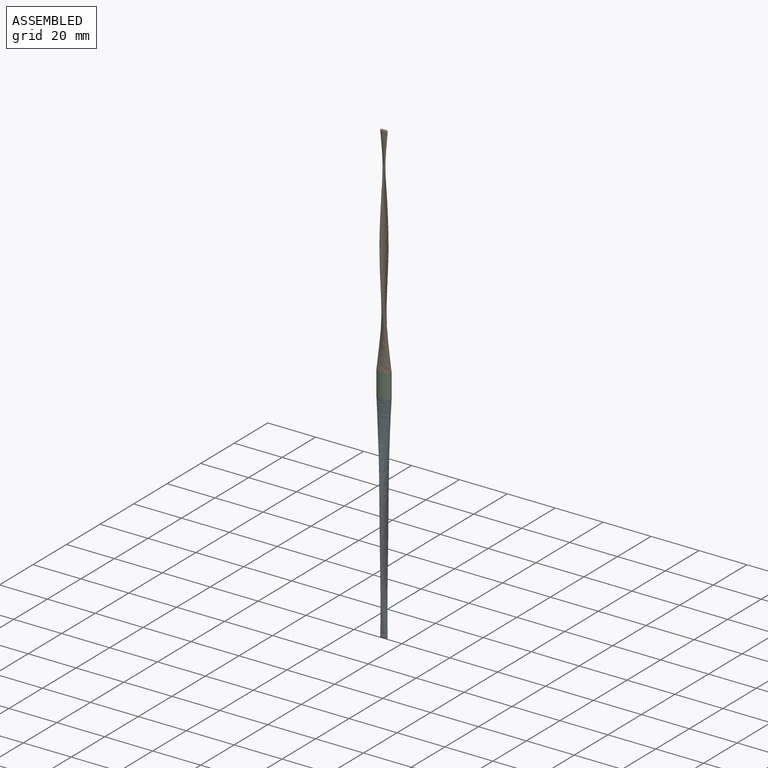
[diagram: assembled view]
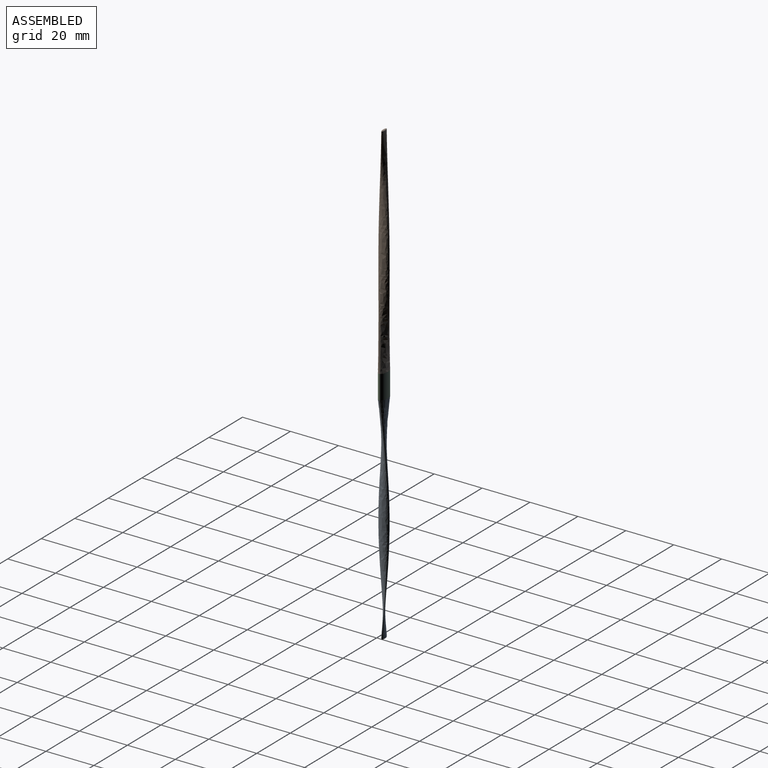
[diagram: assembled view, second angle]
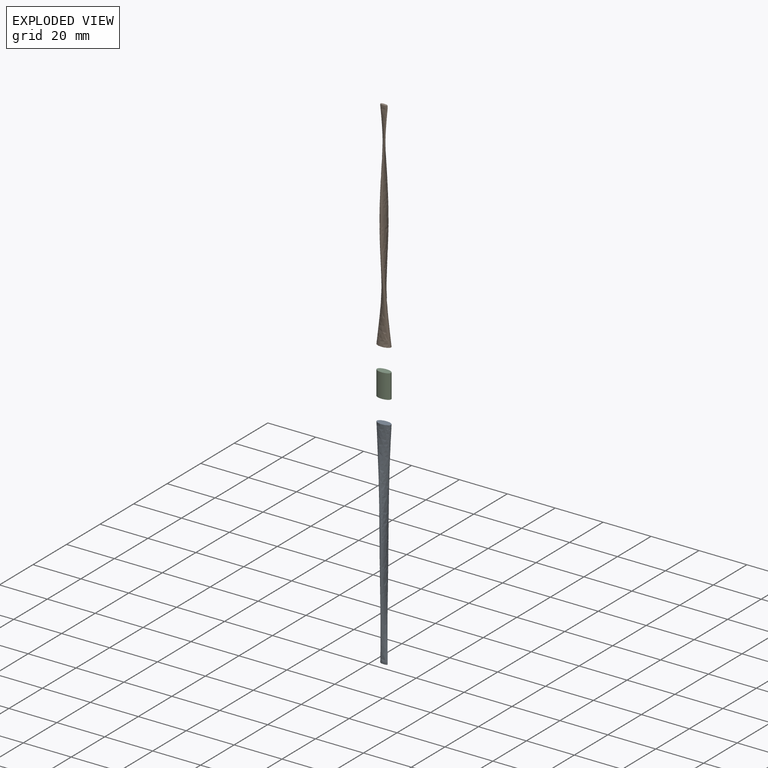
[diagram: exploded view]
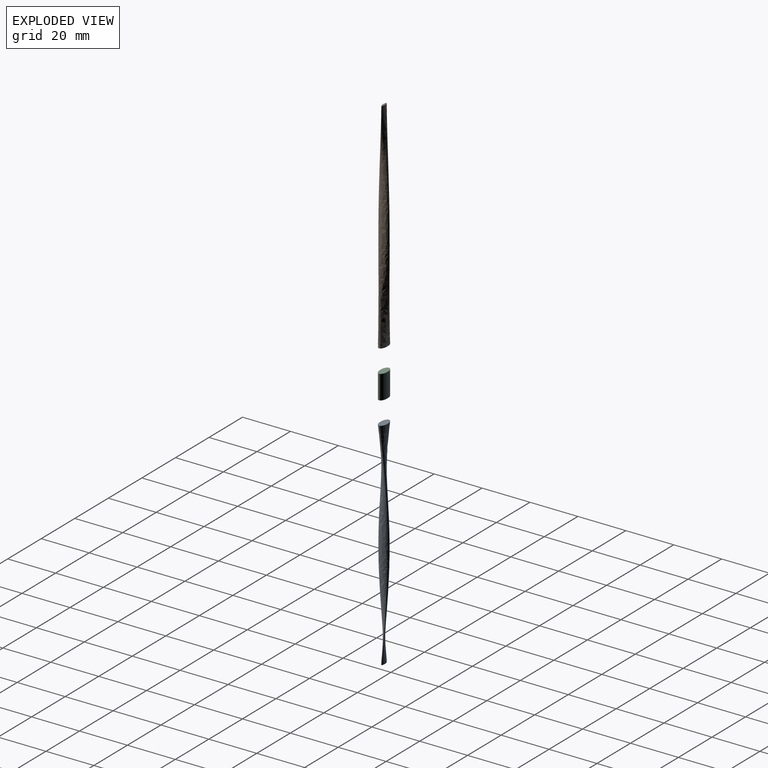
[diagram: exploded view, second angle]
ASSEMBLY  parts=3 mates=2
PART A: 8 faces, bbox 6x6.9x91 mm
  f0: plane 6x3mm, normal (0,0,-1), area 14.1mm2, adj f1
  f1: bspline ~90x6.88mm, area 814mm2, adj f0,f2
  f2: extruded ~3x1mm, area 4.7mm2, adj f1,f4,f5,f6,f7
  f3: plane 2.26x0.4mm, normal (0,0,1), area 0.6mm2, adj f5,f6
  f4: bspline ~0.45x0.37mm, area 0.2mm2, adj f2,f5,f6
  f5: bspline ~2.8x0.57mm, area 1.2mm2, adj f2,f3,f4,f7
  f6: bspline ~2.87x0.58mm, area 1.2mm2, adj f2,f3,f4,f7
  f7: bspline ~0.45x0.37mm, area 0.1mm2, adj f2,f5,f6
PART B: same geometry as A
PART C: 3 faces, bbox 3x6x10 mm
  f0: extruded ~10x6mm, area 145.3mm2, adj f1,f2
  f1: plane 6x3mm, normal (0,0,1), area 14.1mm2, adj f0
  f2: plane 6x3mm, normal (0,0,-1), area 14.1mm2, adj f0
PLACE A rot(axis=(0,1,0),180deg) t=(-55.45,-5.69,-16.02)mm
PLACE B t=(-55.45,-5.69,-6.02)mm
PLACE C rot(axis=(0.71,-0.71,0),180deg) t=(-55.45,7.45,-6.02)mm
MATE fastened C.f2 <-> B.f0  axis (0,0,1) through (-55.45,-5.69,-6.02)mm
MATE fastened C.f1 <-> A.f0  axis (0,0,-1) through (-55.45,-5.69,-16.02)mm
